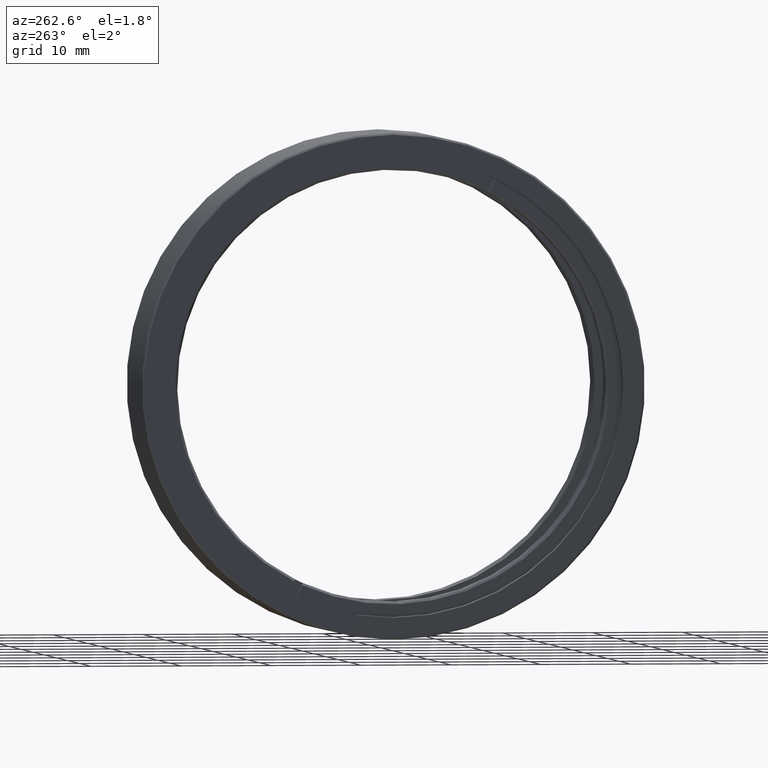
[diagram: clean part render]
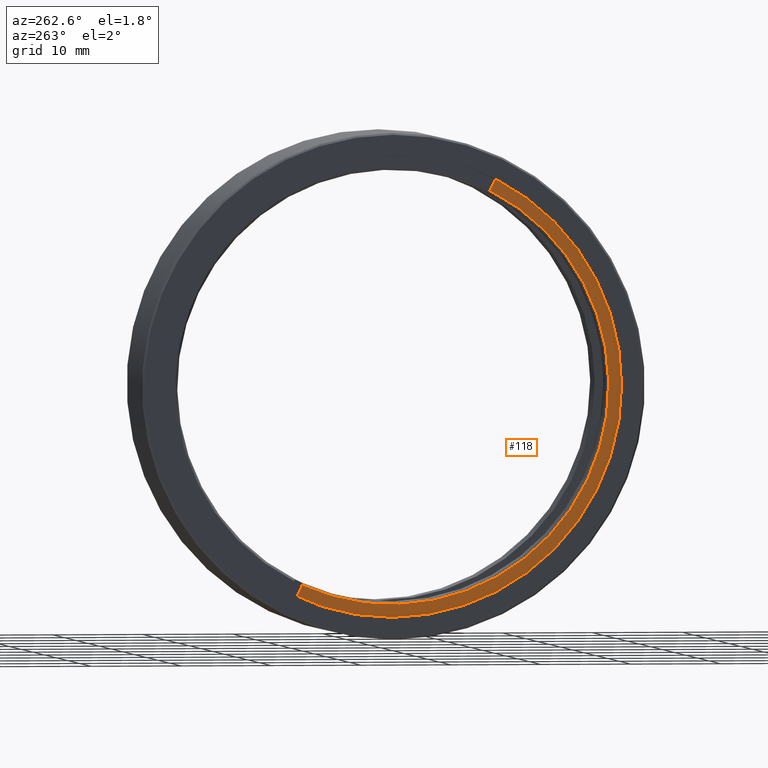
[diagram: same view with one face highlighted and labeled with its STEP entity id]
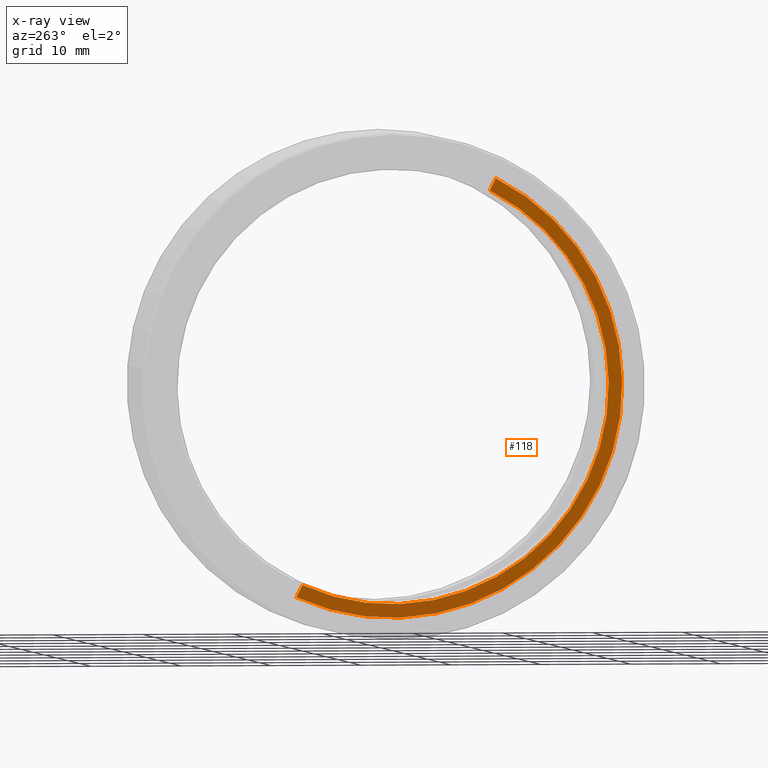
[diagram: x-ray of the same camera — body ghosted, the highlighted face saturated]
A machine part, auxiliary view. The second image highlights one B-rep face of the part: STEP entity #118.
The next image is the same camera in x-ray: the body ghosted, the highlighted face saturated — about 0% of this face is hidden behind the body in this view.
In plain terms, the highlighted planar face has unit normal (-1, -0, 0).
Its self-contained STEP definition (entity closure, byte-faithful):
#4 = CARTESIAN_POINT ( 'NONE',  ( -8.607049834566915081, -20.10857142857141966, -3.286487835346685316E-16 ) ) ;
#8 = VERTEX_POINT ( 'NONE', #1249 ) ;
#53 = DIRECTION ( 'NONE',  ( 0.000000000000000000, -0.4327584343754188323, 0.9015099208976772305 ) ) ;
#94 = EDGE_CURVE ( 'NONE', #928, #469, #1175, .T. ) ;
#118 = ADVANCED_FACE ( 'NONE', ( #829 ), #1140, .T. ) ;
#123 = EDGE_CURVE ( 'NONE', #743, #1064, #1376, .T. ) ;
#182 = CIRCLE ( 'NONE', #1202, 24.09450000000001069 ) ;
#199 = VECTOR ( 'NONE', #53, 1000.000000000000114 ) ;
#256 = CARTESIAN_POINT ( 'NONE',  ( -8.607049834566915081, -20.10857142857141966, -3.286487835346685316E-16 ) ) ;
#305 = EDGE_CURVE ( 'NONE', #8, #928, #182, .T. ) ;
#337 = EDGE_CURVE ( 'NONE', #743, #469, #1194, .T. ) ;
#381 = CARTESIAN_POINT ( 'NONE',  ( -8.607049834566915081, -20.10857142857141966, -3.286487835346685316E-16 ) ) ;
#442 = AXIS2_PLACEMENT_3D ( 'NONE', #4, #1290, #492 ) ;
#448 = CARTESIAN_POINT ( 'NONE',  ( -8.607049834566915081, -65.99896199843929878, 94.44216247706832235 ) ) ;
#469 = VERTEX_POINT ( 'NONE', #1382 ) ;
#492 = DIRECTION ( 'NONE',  ( 0.000000000000000000, -0.9015099208976771195, -0.4327584343754189433 ) ) ;
#648 = ORIENTED_EDGE ( 'NONE', *, *, #337, .F. ) ;
#743 = VERTEX_POINT ( 'NONE', #1219 ) ;
#745 = AXIS2_PLACEMENT_3D ( 'NONE', #381, #1283, #1419 ) ;
#762 = ORIENTED_EDGE ( 'NONE', *, *, #1581, .F. ) ;
#795 = VECTOR ( 'NONE', #913, 1000.000000000000114 ) ;
#829 = FACE_OUTER_BOUND ( 'NONE', #1416, .T. ) ;
#854 = CARTESIAN_POINT ( 'NONE',  ( -8.607049834566915081, -41.83000221764050508, -10.42709809705853452 ) ) ;
#898 = DIRECTION ( 'NONE',  ( -1.000000000000000000, 0.000000000000000000, 0.000000000000000000 ) ) ;
#913 = DIRECTION ( 'NONE',  ( 0.000000000000000000, -0.4327584343754188323, 0.9015099208976772305 ) ) ;
#928 = VERTEX_POINT ( 'NONE', #854 ) ;
#956 = DIRECTION ( 'NONE',  ( 0.000000000000000000, -0.9015099208976764533, -0.4327584343754204421 ) ) ;
#1024 = DIRECTION ( 'NONE',  ( 0.000000000000000000, -0.9015099208976772305, -0.4327584343754189988 ) ) ;
#1048 = LINE ( 'NONE', #1575, #795 ) ;
#1064 = VERTEX_POINT ( 'NONE', #1423 ) ;
#1140 = PLANE ( 'NONE',  #745 ) ;
#1175 = CIRCLE ( 'NONE', #442, 24.09450000000000713 ) ;
#1194 = LINE ( 'NONE', #448, #199 ) ;
#1202 = AXIS2_PLACEMENT_3D ( 'NONE', #1339, #1490, #956 ) ;
#1219 = CARTESIAN_POINT ( 'NONE',  ( -8.607049834566915081, -9.485204374457950394, -23.28567161761877813 ) ) ;
#1249 = CARTESIAN_POINT ( 'NONE',  ( -8.607049834566915081, -30.98417913426575865, 21.50037411957853095 ) ) ;
#1283 = DIRECTION ( 'NONE',  ( -1.000000000000000000, -0.000000000000000000, 0.000000000000000000 ) ) ;
#1290 = DIRECTION ( 'NONE',  ( 1.000000000000000000, -0.000000000000000000, -0.000000000000000000 ) ) ;
#1333 = ORIENTED_EDGE ( 'NONE', *, *, #123, .T. ) ;
#1339 = CARTESIAN_POINT ( 'NONE',  ( -8.607049834566915081, -20.10857142857141966, -3.286487835346685316E-16 ) ) ;
#1376 = CIRCLE ( 'NONE', #1570, 25.59450000000000358 ) ;
#1382 = CARTESIAN_POINT ( 'NONE',  ( -8.607049834566915081, -10.13447364377484661, -21.93313255395399253 ) ) ;
#1416 = EDGE_LOOP ( 'NONE', ( #648, #1333, #762, #1507, #1508 ) ) ;
#1419 = DIRECTION ( 'NONE',  ( 0.000000000000000000, -0.9015099208976771195, -0.4327584343754188323 ) ) ;
#1423 = CARTESIAN_POINT ( 'NONE',  ( -8.607049834566915081, -31.63344840358265486, 22.85291318324332011 ) ) ;
#1490 = DIRECTION ( 'NONE',  ( 1.000000000000000000, -0.000000000000000000, -0.000000000000000000 ) ) ;
#1507 = ORIENTED_EDGE ( 'NONE', *, *, #305, .T. ) ;
#1508 = ORIENTED_EDGE ( 'NONE', *, *, #94, .T. ) ;
#1570 = AXIS2_PLACEMENT_3D ( 'NONE', #256, #898, #1024 ) ;
#1575 = CARTESIAN_POINT ( 'NONE',  ( -8.607049834566915081, -65.99896199843929878, 94.44216247706832235 ) ) ;
#1581 = EDGE_CURVE ( 'NONE', #8, #1064, #1048, .T. ) ;